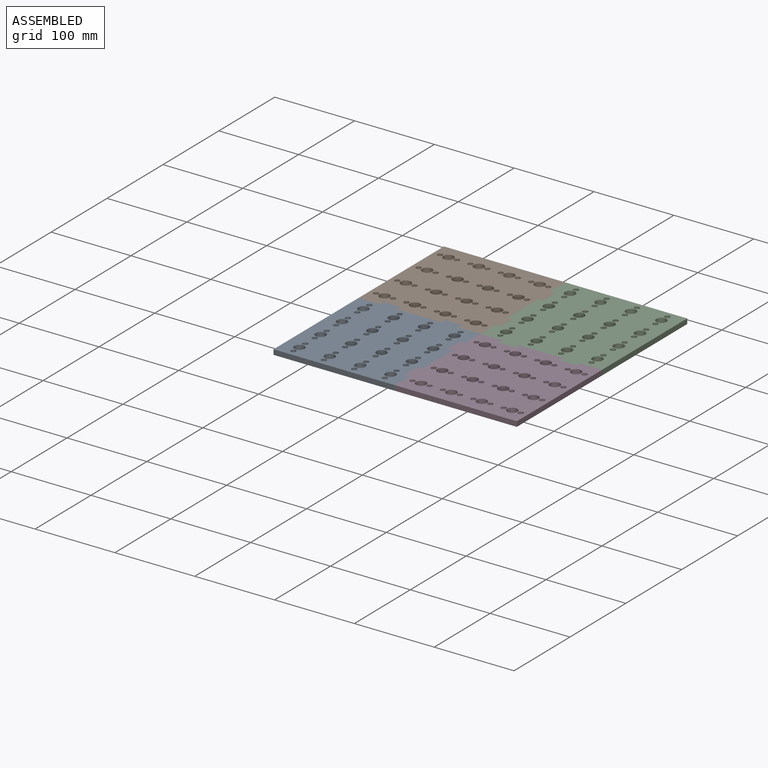
[diagram: assembled view]
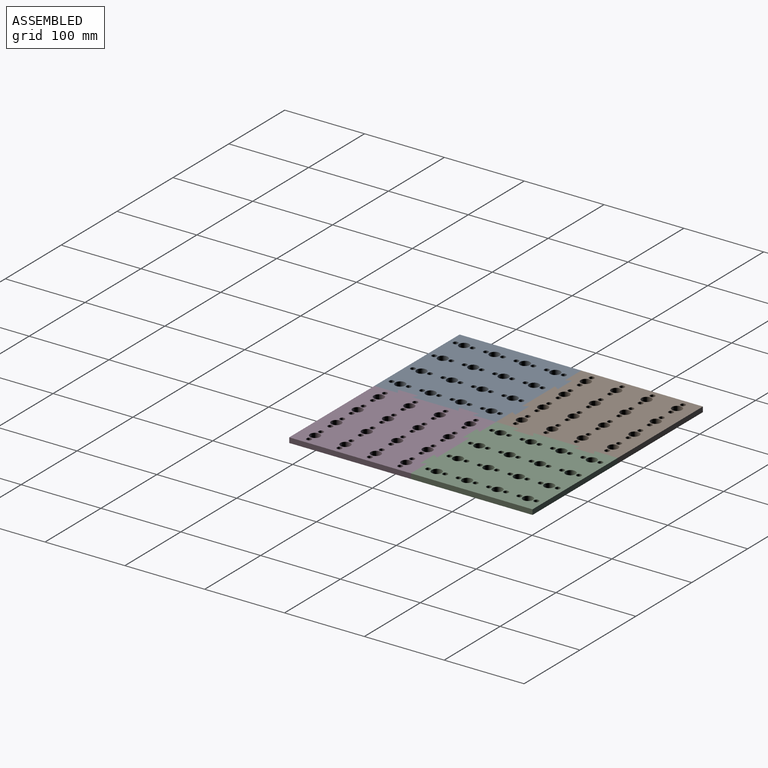
[diagram: assembled view, second angle]
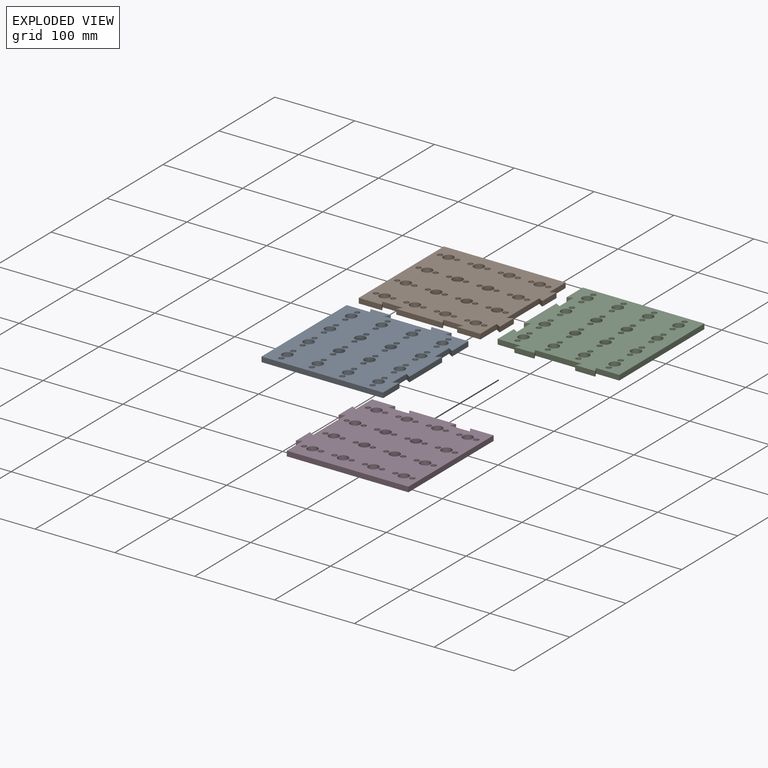
[diagram: exploded view]
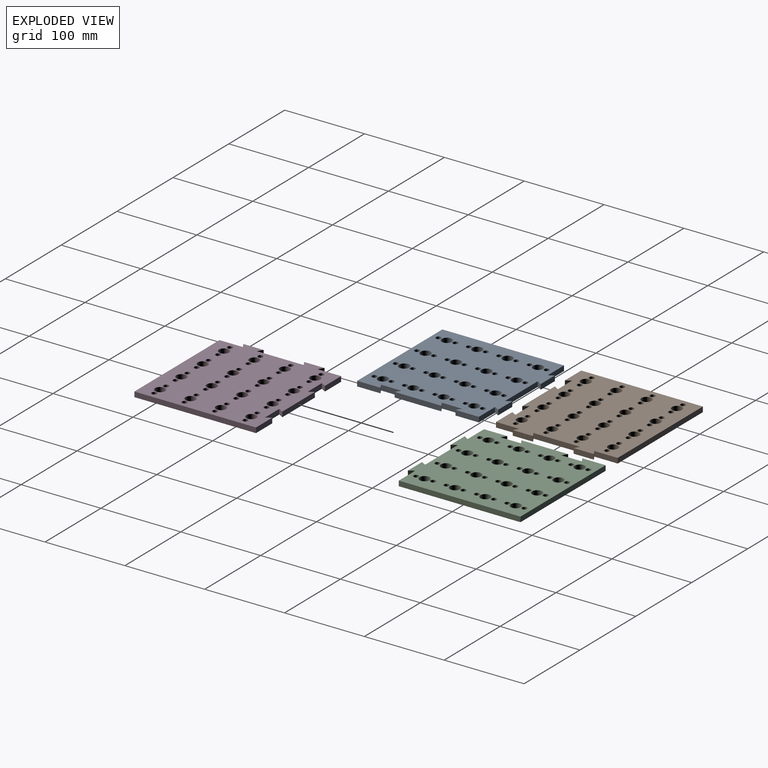
[diagram: exploded view, second angle]
ASSEMBLY  parts=4 mates=3
PART A: 70 faces, bbox 158.8x152.4x6.4 mm
  f0: plane 158.75x152.4mm, normal (0,0,1), area 20185.5mm2, adj f2,f3,f4,f5,f6,f7,f8,f9
  f1: plane 158.75x152.4mm, normal (0,0,-1), area 20185.5mm2, adj f2,f3,f4,f5,f6,f7,f8,f9
  f2: plane 6.35x6.35mm, normal (-0.86,0.51,0), area 47mm2, adj f0,f1,f3,f21
  f3: plane 58.42x6.35mm, normal (0,-1,0), area 371mm2, adj f0,f1,f2,f4
  f4: plane 6.35x6.35mm, normal (0.86,0.51,0), area 47mm2, adj f0,f1,f3,f5
  f5: plane 25.4x6.35mm, normal (0,-1,0), area 161.3mm2, adj f0,f1,f4,f6
  f6: plane 6.35x6.35mm, normal (-0.86,0.51,0), area 47mm2, adj f0,f1,f5,f7
  f7: plane 29.21x6.35mm, normal (0,-1,0), area 185.5mm2, adj f0,f1,f6,f8
  f8: plane 29.21x6.35mm, normal (1,0,0), area 185.5mm2, adj f0,f1,f7,f9
  f9: plane 6.35x6.35mm, normal (-0.51,-0.86,0), area 47mm2, adj f0,f1,f8,f10
  f10: plane 25.4x6.35mm, normal (1,0,0), area 161.3mm2, adj f0,f1,f9,f11
  f11: plane 6.35x6.35mm, normal (-0.51,0.86,0), area 47mm2, adj f0,f1,f10,f12
  f12: plane 58.42x6.35mm, normal (1,0,0), area 371mm2, adj f0,f1,f11,f13
  f13: plane 6.35x6.35mm, normal (-0.51,-0.86,0), area 47mm2, adj f0,f1,f12,f14
  f14: plane 25.4x6.35mm, normal (1,0,0), area 161.3mm2, adj f0,f1,f13,f15
  f15: plane 6.35x6.35mm, normal (-0.51,0.86,0), area 47mm2, adj f0,f1,f14,f16
  f16: plane 29.21x6.35mm, normal (1,0,0), area 185.5mm2, adj f0,f1,f15,f17
  f17: plane 152.4x6.35mm, normal (0,1,0), area 967.7mm2, adj f0,f1,f16,f18
  f18: plane 152.4x6.35mm, normal (-1,0,0), area 967.7mm2, adj f0,f1,f17,f19
  f19: plane 29.21x6.35mm, normal (0,-1,0), area 185.5mm2, adj f0,f1,f18,f20
  f20: plane 6.35x6.35mm, normal (0.86,0.51,0), area 47mm2, adj f0,f1,f19,f21
  f21: plane 25.4x6.35mm, normal (0,-1,0), area 161.3mm2, adj f0,f1,f2,f20
  f22: cylinder r=6.35mm len=12.7mm, axis (0,0,1), area 253.4mm2, adj f0,f1
  f23: cylinder r=6.35mm len=12.7mm, axis (0,0,1), area 253.4mm2, adj f0,f1
  f24: cylinder r=3.17mm len=6.35mm, axis (0,0,1), area 126.7mm2, adj f0,f1
  f25: cylinder r=3.17mm len=6.35mm, axis (0,0,1), area 126.7mm2, adj f0,f1
  f26: cylinder r=6.35mm len=12.7mm, axis (0,0,1), area 253.4mm2, adj f0,f1
  f27: cylinder r=3.17mm len=6.35mm, axis (0,0,1), area 126.7mm2, adj f0,f1
  f28: cylinder r=3.17mm len=6.35mm, axis (0,0,1), area 126.7mm2, adj f0,f1
  f29: cylinder r=6.35mm len=12.7mm, axis (0,0,1), area 253.4mm2, adj f0,f1
  f30: cylinder r=3.17mm len=6.35mm, axis (0,0,1), area 126.7mm2, adj f0,f1
  f31: cylinder r=3.17mm len=6.35mm, axis (0,0,1), area 126.7mm2, adj f0,f1
  f32: cylinder r=6.35mm len=12.7mm, axis (0,0,1), area 253.4mm2, adj f0,f1
  f33: cylinder r=3.17mm len=6.35mm, axis (0,0,1), area 126.7mm2, adj f0,f1
  f34: cylinder r=3.17mm len=6.35mm, axis (0,0,1), area 126.7mm2, adj f0,f1
  f35: cylinder r=3.17mm len=6.35mm, axis (0,0,1), area 126.7mm2, adj f0,f1
  f36: cylinder r=6.35mm len=12.7mm, axis (0,0,1), area 253.4mm2, adj f0,f1
  f37: cylinder r=3.17mm len=6.35mm, axis (0,0,1), area 126.7mm2, adj f0,f1
  f38: cylinder r=3.17mm len=6.35mm, axis (0,0,1), area 126.7mm2, adj f0,f1
  f39: cylinder r=6.35mm len=12.7mm, axis (0,0,1), area 253.4mm2, adj f0,f1
  f40: cylinder r=3.17mm len=6.35mm, axis (0,0,1), area 126.7mm2, adj f0,f1
  f41: cylinder r=3.17mm len=6.35mm, axis (0,0,1), area 126.7mm2, adj f0,f1
  f42: cylinder r=6.35mm len=12.7mm, axis (0,0,1), area 253.4mm2, adj f0,f1
  f43: cylinder r=3.17mm len=6.35mm, axis (0,0,1), area 126.7mm2, adj f0,f1
  f44: cylinder r=3.17mm len=6.35mm, axis (0,0,1), area 126.7mm2, adj f0,f1
  f45: cylinder r=6.35mm len=12.7mm, axis (0,0,1), area 253.4mm2, adj f0,f1
  f46: cylinder r=3.17mm len=6.35mm, axis (0,0,1), area 126.7mm2, adj f0,f1
  f47: cylinder r=3.17mm len=6.35mm, axis (0,0,1), area 126.7mm2, adj f0,f1
  f48: cylinder r=3.17mm len=6.35mm, axis (0,0,1), area 126.7mm2, adj f0,f1
  f49: cylinder r=6.35mm len=12.7mm, axis (0,0,1), area 253.4mm2, adj f0,f1
  f50: cylinder r=3.17mm len=6.35mm, axis (0,0,1), area 126.7mm2, adj f0,f1
  f51: cylinder r=6.35mm len=12.7mm, axis (0,0,1), area 253.4mm2, adj f0,f1
  f52: cylinder r=3.17mm len=6.35mm, axis (0,0,1), area 126.7mm2, adj f0,f1
  f53: cylinder r=3.17mm len=6.35mm, axis (0,0,1), area 126.7mm2, adj f0,f1
  f54: cylinder r=6.35mm len=12.7mm, axis (0,0,1), area 253.4mm2, adj f0,f1
  f55: cylinder r=3.17mm len=6.35mm, axis (0,0,1), area 126.7mm2, adj f0,f1
  f56: cylinder r=3.17mm len=6.35mm, axis (0,0,1), area 126.7mm2, adj f0,f1
  f57: cylinder r=6.35mm len=12.7mm, axis (0,0,1), area 253.4mm2, adj f0,f1
  f58: cylinder r=3.17mm len=6.35mm, axis (0,0,1), area 126.7mm2, adj f0,f1
  f59: cylinder r=6.35mm len=12.7mm, axis (0,0,1), area 253.4mm2, adj f0,f1
  f60: cylinder r=3.17mm len=6.35mm, axis (0,0,1), area 126.7mm2, adj f0,f1
  f61: cylinder r=3.17mm len=6.35mm, axis (0,0,1), area 126.7mm2, adj f0,f1
  f62: cylinder r=3.17mm len=6.35mm, axis (0,0,1), area 126.7mm2, adj f0,f1
  f63: cylinder r=6.35mm len=12.7mm, axis (0,0,1), area 253.4mm2, adj f0,f1
  f64: cylinder r=3.17mm len=6.35mm, axis (0,0,1), area 126.7mm2, adj f0,f1
  f65: cylinder r=3.17mm len=6.35mm, axis (0,0,1), area 126.7mm2, adj f0,f1
  f66: cylinder r=3.17mm len=6.35mm, axis (0,0,1), area 126.7mm2, adj f0,f1
  f67: cylinder r=6.35mm len=12.7mm, axis (0,0,1), area 253.4mm2, adj f0,f1
  f68: cylinder r=3.17mm len=6.35mm, axis (0,0,1), area 126.7mm2, adj f0,f1
  f69: cylinder r=3.17mm len=6.35mm, axis (0,0,1), area 126.7mm2, adj f0,f1
PART B: same geometry as A
PART C: same geometry as A
PART D: same geometry as A
PLACE A rot(axis=(0,0,1),90deg) t=(-57.87,-148.48,0)mm
PLACE B rot(axis=(0,1,0),0deg) t=(-57.87,3.92,0)mm
PLACE C rot(axis=(0,0,-1),90deg) t=(94.53,3.92,0)mm
PLACE D rot(axis=(0,0,1),180deg) t=(94.53,-148.48,0)mm
MATE fastened B.f5 <-> A.f10  axis (0,-1,0) through (-19.77,-65.93,3.18)mm
MATE fastened C.f10 <-> D.f5  axis (0,-1,0) through (56.43,-78.63,3.18)mm
MATE fastened B.f14 <-> C.f21  axis (1,0,0) through (24.68,42.02,3.18)mm
